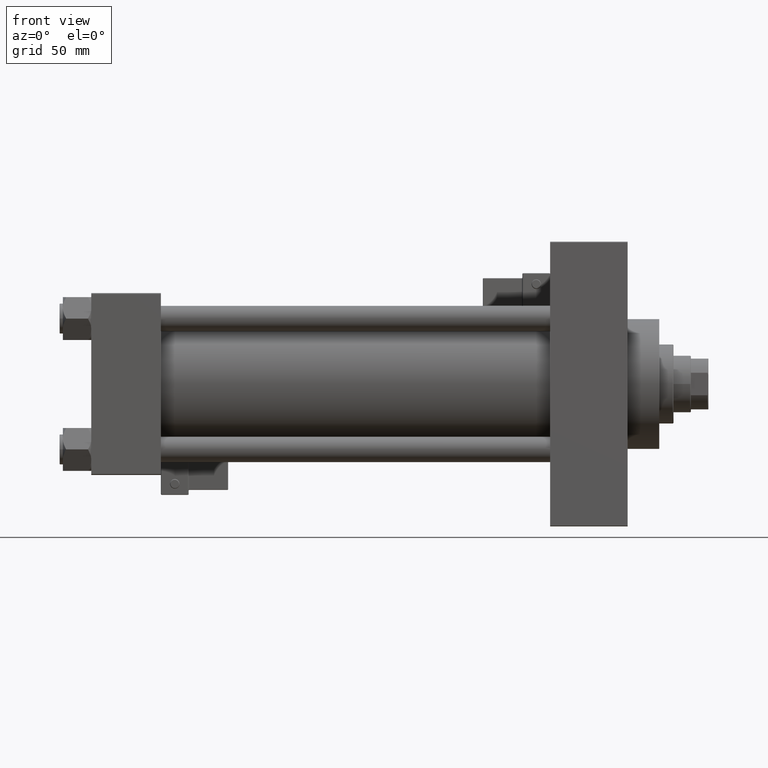
[diagram: clean part render]
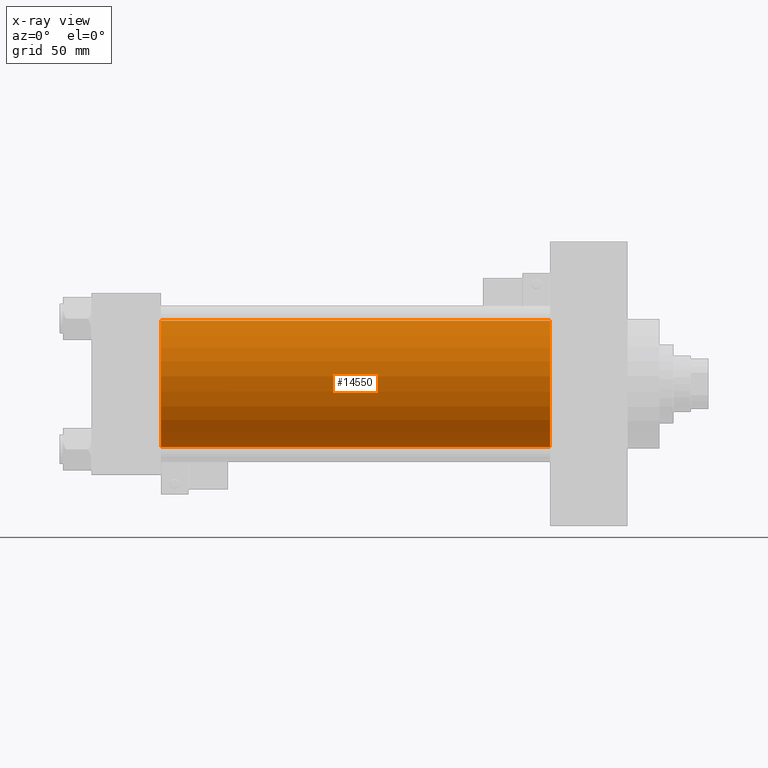
[diagram: x-ray — body ghosted, one internal face saturated and labeled with its STEP entity id]
A machine part, front view, then the same camera in x-ray: the body is ghosted and one INTERNAL B-rep face — a face not visible from any outside direction — is saturated and labeled: STEP entity #14550.
In plain terms, the highlighted cylindrical surface (partial cylindrical patch) has radius 40 mm, axis along (-1, -0, -0).
Its self-contained STEP definition (entity closure, byte-faithful):
#303 = ORIENTED_EDGE ( 'NONE', *, *, #25997, .T. ) ;
#2387 = EDGE_CURVE ( 'NONE', #37228, #24173, #49300, .T. ) ;
#3279 = CARTESIAN_POINT ( 'NONE',  ( 290.0000000000000000, -2.602085213965210642E-15, 40.00000000000000000 ) ) ;
#4206 = AXIS2_PLACEMENT_3D ( 'NONE', #41883, #22501, #6363 ) ;
#4525 = FACE_OUTER_BOUND ( 'NONE', #14857, .T. ) ;
#5238 = AXIS2_PLACEMENT_3D ( 'NONE', #7764, #30740, #11555 ) ;
#6123 = LINE ( 'NONE', #33615, #17449 ) ;
#6363 = DIRECTION ( 'NONE',  ( 0.000000000000000000, 0.000000000000000000, -1.000000000000000000 ) ) ;
#7764 = CARTESIAN_POINT ( 'NONE',  ( 290.0000000000000000, -2.602085213965210642E-15, 0.000000000000000000 ) ) ;
#8794 = DIRECTION ( 'NONE',  ( -1.000000000000000000, -0.000000000000000000, -0.000000000000000000 ) ) ;
#8869 = ORIENTED_EDGE ( 'NONE', *, *, #28974, .T. ) ;
#11555 = DIRECTION ( 'NONE',  ( 0.000000000000000000, 0.000000000000000000, -1.000000000000000000 ) ) ;
#11789 = CIRCLE ( 'NONE', #5238, 40.00000000000000000 ) ;
#13568 = VERTEX_POINT ( 'NONE', #3279 ) ;
#14550 = ADVANCED_FACE ( 'NONE', ( #4525 ), #35793, .F. ) ;
#14570 = CARTESIAN_POINT ( 'NONE',  ( 290.0000000000000000, -2.602085213965210642E-15, 40.00000000000000000 ) ) ;
#14857 = EDGE_LOOP ( 'NONE', ( #303, #8869, #36767, #20428 ) ) ;
#17449 = VECTOR ( 'NONE', #41411, 1000.000000000000000 ) ;
#17654 = EDGE_CURVE ( 'NONE', #13568, #37228, #25691, .T. ) ;
#20417 = CARTESIAN_POINT ( 'NONE',  ( 290.0000000000000000, -2.602085213965210642E-15, 0.000000000000000000 ) ) ;
#20428 = ORIENTED_EDGE ( 'NONE', *, *, #17654, .F. ) ;
#22501 = DIRECTION ( 'NONE',  ( 1.000000000000000000, 0.000000000000000000, 0.000000000000000000 ) ) ;
#24173 = VERTEX_POINT ( 'NONE', #28319 ) ;
#25691 = LINE ( 'NONE', #14570, #29238 ) ;
#25997 = EDGE_CURVE ( 'NONE', #13568, #35377, #11789, .T. ) ;
#28319 = CARTESIAN_POINT ( 'NONE',  ( 44.00000000000000000, 2.296501982624201990E-15, -40.00000000000000000 ) ) ;
#28974 = EDGE_CURVE ( 'NONE', #35377, #24173, #6123, .T. ) ;
#29238 = VECTOR ( 'NONE', #33504, 1000.000000000000000 ) ;
#30740 = DIRECTION ( 'NONE',  ( 1.000000000000000000, 0.000000000000000000, 0.000000000000000000 ) ) ;
#31768 = DIRECTION ( 'NONE',  ( 0.000000000000000000, 0.000000000000000000, 1.000000000000000000 ) ) ;
#32369 = CARTESIAN_POINT ( 'NONE',  ( 290.0000000000000000, 2.296501982624201990E-15, -40.00000000000000000 ) ) ;
#32371 = AXIS2_PLACEMENT_3D ( 'NONE', #20417, #8794, #31768 ) ;
#33504 = DIRECTION ( 'NONE',  ( -1.000000000000000000, -0.000000000000000000, -0.000000000000000000 ) ) ;
#33615 = CARTESIAN_POINT ( 'NONE',  ( 290.0000000000000000, 2.296501982624201990E-15, -40.00000000000000000 ) ) ;
#35377 = VERTEX_POINT ( 'NONE', #32369 ) ;
#35793 = CYLINDRICAL_SURFACE ( 'NONE', #32371, 40.00000000000000000 ) ;
#36403 = CARTESIAN_POINT ( 'NONE',  ( 44.00000000000000000, -2.602085213965210642E-15, 40.00000000000000000 ) ) ;
#36767 = ORIENTED_EDGE ( 'NONE', *, *, #2387, .F. ) ;
#37228 = VERTEX_POINT ( 'NONE', #36403 ) ;
#41411 = DIRECTION ( 'NONE',  ( -1.000000000000000000, -0.000000000000000000, -0.000000000000000000 ) ) ;
#41883 = CARTESIAN_POINT ( 'NONE',  ( 44.00000000000000000, -2.602085213965210642E-15, 0.000000000000000000 ) ) ;
#49300 = CIRCLE ( 'NONE', #4206, 40.00000000000000000 ) ;